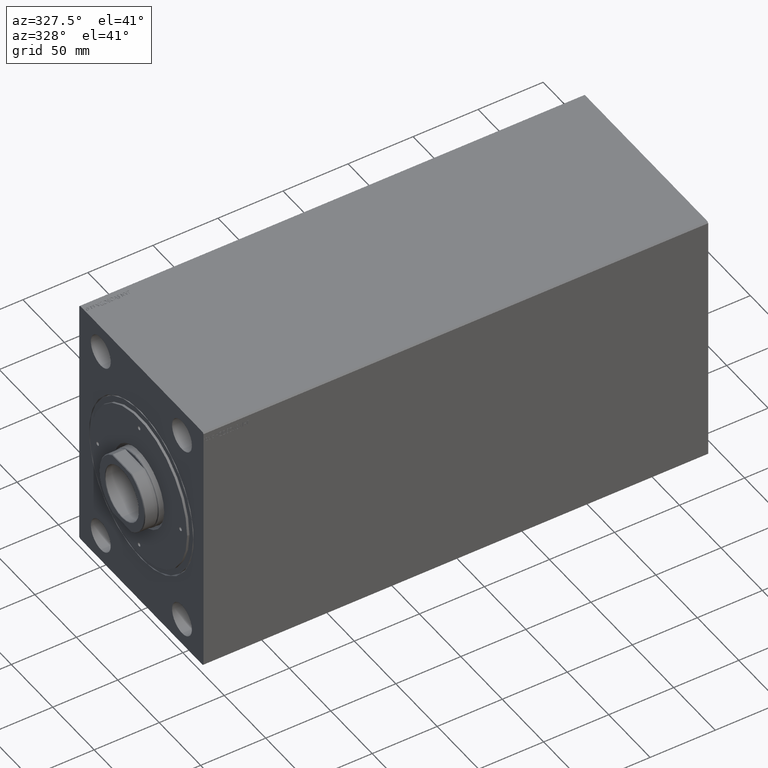
[diagram: clean part render]
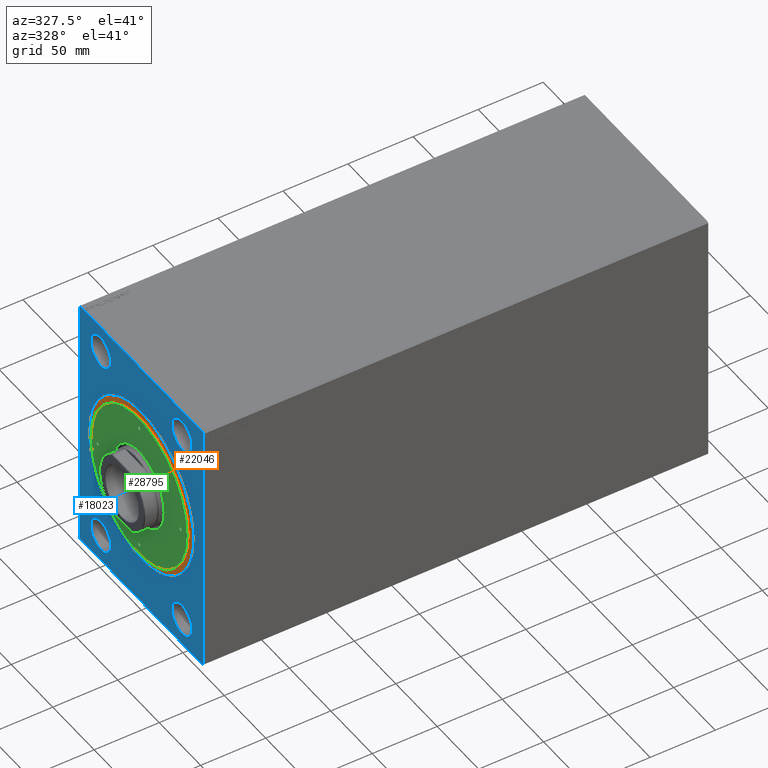
[diagram: same view with three faces highlighted in distinct colors, each labeled with its STEP entity id]
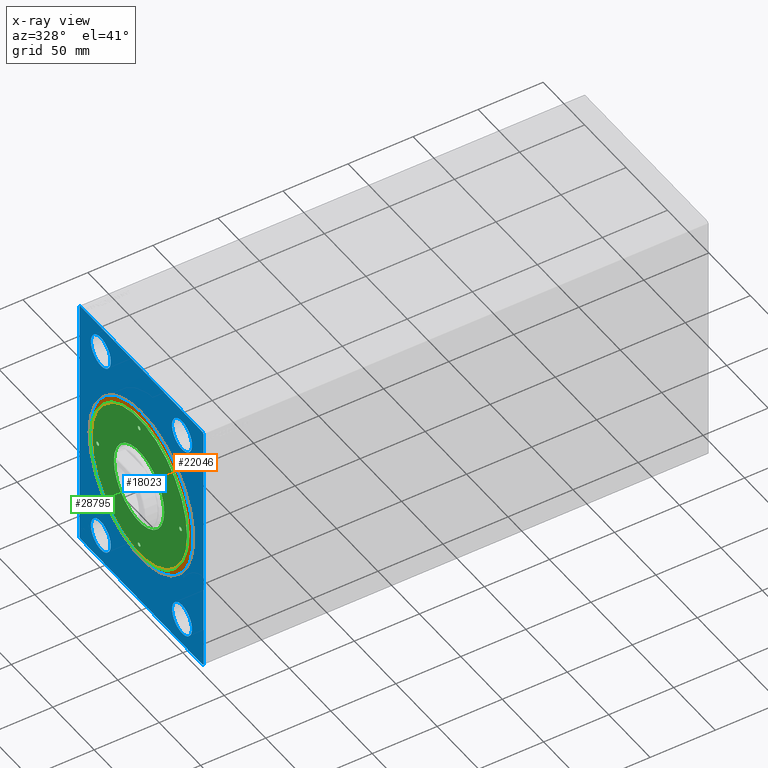
[diagram: x-ray of the same camera — body ghosted, the three highlighted faces saturated]
A machine part, auxiliary view with three faces highlighted in distinct colors.
The next image is the same camera in x-ray (body ghosted, the three faces saturated) — at least one of them is partly hidden behind the body in this view.
Their STEP definitions:

[orange] entity #22046 — the highlighted planar face has unit normal (-1, 0, 0).
#1119 = FACE_BOUND ( 'NONE', #40782, .T. ) ;
#1334 = EDGE_CURVE ( 'NONE', #1730, #22820, #11854, .T. ) ;
#1341 = DIRECTION ( 'NONE',  ( 0.000000000000000000, 0.000000000000000000, 1.000000000000000000 ) ) ;
#1730 = VERTEX_POINT ( 'NONE', #30438 ) ;
#4907 = CARTESIAN_POINT ( 'NONE',  ( 0.000000000000000000, 0.000000000000000000, 13.19999999999999929 ) ) ;
#7431 = DIRECTION ( 'NONE',  ( 1.000000000000000000, 0.000000000000000000, 0.000000000000000000 ) ) ;
#7586 = EDGE_CURVE ( 'NONE', #29214, #13556, #40800, .T. ) ;
#9111 = CIRCLE ( 'NONE', #14105, 58.00000000000000000 ) ;
#11854 = CIRCLE ( 'NONE', #36713, 58.00000000000000000 ) ;
#12027 = FACE_OUTER_BOUND ( 'NONE', #34918, .T. ) ;
#12065 = DIRECTION ( 'NONE',  ( 0.000000000000000000, 0.000000000000000000, 1.000000000000000000 ) ) ;
#13556 = VERTEX_POINT ( 'NONE', #37236 ) ;
#14105 = AXIS2_PLACEMENT_3D ( 'NONE', #34571, #31453, #7431 ) ;
#14574 = EDGE_CURVE ( 'NONE', #13556, #29214, #32248, .T. ) ;
#15168 = DIRECTION ( 'NONE',  ( 1.000000000000000000, 0.000000000000000000, 0.000000000000000000 ) ) ;
#15587 = PLANE ( 'NONE',  #41369 ) ;
#16047 = CARTESIAN_POINT ( 'NONE',  ( 0.000000000000000000, 0.000000000000000000, 13.19999999999999929 ) ) ;
#18596 = DIRECTION ( 'NONE',  ( 1.000000000000000000, 0.000000000000000000, 0.000000000000000000 ) ) ;
#19753 = ORIENTED_EDGE ( 'NONE', *, *, #1334, .F. ) ;
#22046 = ADVANCED_FACE ( 'NONE', ( #1119, #12027 ), #15587, .T. ) ;
#22820 = VERTEX_POINT ( 'NONE', #32061 ) ;
#23417 = CARTESIAN_POINT ( 'NONE',  ( 0.000000000000000000, 0.000000000000000000, 13.19999999999999929 ) ) ;
#27520 = ORIENTED_EDGE ( 'NONE', *, *, #7586, .T. ) ;
#29152 = DIRECTION ( 'NONE',  ( 1.000000000000000000, 0.000000000000000000, -0.000000000000000000 ) ) ;
#29214 = VERTEX_POINT ( 'NONE', #30441 ) ;
#30438 = CARTESIAN_POINT ( 'NONE',  ( -58.00000000000000000, 0.000000000000000000, 13.19999999999999929 ) ) ;
#30441 = CARTESIAN_POINT ( 'NONE',  ( -62.50000000000000000, 0.000000000000000000, 13.19999999999999929 ) ) ;
#31453 = DIRECTION ( 'NONE',  ( 0.000000000000000000, 0.000000000000000000, 1.000000000000000000 ) ) ;
#32061 = CARTESIAN_POINT ( 'NONE',  ( 58.00000000000000000, 7.102951435054648059E-15, 13.19999999999999929 ) ) ;
#32248 = CIRCLE ( 'NONE', #42176, 62.50000000000000000 ) ;
#34436 = AXIS2_PLACEMENT_3D ( 'NONE', #16047, #35413, #15168 ) ;
#34571 = CARTESIAN_POINT ( 'NONE',  ( 0.000000000000000000, 0.000000000000000000, 13.19999999999999929 ) ) ;
#34918 = EDGE_LOOP ( 'NONE', ( #27520, #41962 ) ) ;
#35213 = CARTESIAN_POINT ( 'NONE',  ( 0.000000000000000000, 0.000000000000000000, 13.19999999999999929 ) ) ;
#35413 = DIRECTION ( 'NONE',  ( 0.000000000000000000, 0.000000000000000000, 1.000000000000000000 ) ) ;
#35511 = DIRECTION ( 'NONE',  ( 0.000000000000000000, 0.000000000000000000, 1.000000000000000000 ) ) ;
#36713 = AXIS2_PLACEMENT_3D ( 'NONE', #35213, #12065, #42958 ) ;
#37236 = CARTESIAN_POINT ( 'NONE',  ( 62.50000000000000000, 7.654042494670957804E-15, 13.19999999999999929 ) ) ;
#40782 = EDGE_LOOP ( 'NONE', ( #19753, #42065 ) ) ;
#40800 = CIRCLE ( 'NONE', #34436, 62.50000000000000000 ) ;
#41369 = AXIS2_PLACEMENT_3D ( 'NONE', #4907, #1341, #29152 ) ;
#41962 = ORIENTED_EDGE ( 'NONE', *, *, #14574, .T. ) ;
#42065 = ORIENTED_EDGE ( 'NONE', *, *, #42076, .F. ) ;
#42076 = EDGE_CURVE ( 'NONE', #22820, #1730, #9111, .T. ) ;
#42176 = AXIS2_PLACEMENT_3D ( 'NONE', #23417, #35511, #18596 ) ;
#42958 = DIRECTION ( 'NONE',  ( 1.000000000000000000, 0.000000000000000000, 0.000000000000000000 ) ) ;

[blue] entity #18023 — the highlighted planar face has unit normal (1, 0, 0).
#243 = AXIS2_PLACEMENT_3D ( 'NONE', #22843, #23502, #5938 ) ;
#855 = CARTESIAN_POINT ( 'NONE',  ( 0.000000000000000000, 74.00000000000000000, 99.99999999999995737 ) ) ;
#1832 = ORIENTED_EDGE ( 'NONE', *, *, #12565, .F. ) ;
#2117 = VERTEX_POINT ( 'NONE', #42148 ) ;
#2231 = VERTEX_POINT ( 'NONE', #37389 ) ;
#2233 = EDGE_CURVE ( 'NONE', #29763, #38937, #10252, .T. ) ;
#2379 = EDGE_CURVE ( 'NONE', #37346, #31005, #43884, .T. ) ;
#3114 = LINE ( 'NONE', #9573, #24707 ) ;
#3236 = VECTOR ( 'NONE', #13814, 1000.000000000000000 ) ;
#4552 = CARTESIAN_POINT ( 'NONE',  ( 0.000000000000000000, 0.000000000000000000, 0.000000000000000000 ) ) ;
#4871 = CARTESIAN_POINT ( 'NONE',  ( 0.000000000000000000, 75.00000000000000000, 98.99999999999995737 ) ) ;
#5016 = EDGE_CURVE ( 'NONE', #2117, #22650, #11252, .T. ) ;
#5664 = DIRECTION ( 'NONE',  ( 0.000000000000000000, -7.008983741320432232E-17, 1.000000000000000000 ) ) ;
#5673 = ORIENTED_EDGE ( 'NONE', *, *, #35814, .F. ) ;
#5912 = AXIS2_PLACEMENT_3D ( 'NONE', #20364, #33726, #43722 ) ;
#5938 = DIRECTION ( 'NONE',  ( 0.000000000000000000, 0.000000000000000000, 1.000000000000000000 ) ) ;
#5948 = VECTOR ( 'NONE', #30777, 1000.000000000000114 ) ;
#6023 = DIRECTION ( 'NONE',  ( 0.000000000000000000, 0.7071067811865474617, -0.7071067811865474617 ) ) ;
#6924 = CARTESIAN_POINT ( 'NONE',  ( 0.000000000000000000, 74.00000000000001421, -100.0000000000000426 ) ) ;
#7140 = CARTESIAN_POINT ( 'NONE',  ( 9.797174393178825657E-16, 49.00000000000000000, 79.00000000000001421 ) ) ;
#7269 = ORIENTED_EDGE ( 'NONE', *, *, #24814, .F. ) ;
#8334 = EDGE_CURVE ( 'NONE', #15052, #30255, #21335, .T. ) ;
#8455 = FACE_BOUND ( 'NONE', #38650, .T. ) ;
#8755 = EDGE_LOOP ( 'NONE', ( #38732, #43094 ) ) ;
#8916 = CIRCLE ( 'NONE', #39457, 11.99999999999999645 ) ;
#9215 = CARTESIAN_POINT ( 'NONE',  ( 0.000000000000000000, 75.00000000000001421, -99.00000000000004263 ) ) ;
#9395 = EDGE_LOOP ( 'NONE', ( #17013, #7269, #32675, #34186, #13577, #5673, #31747, #22092 ) ) ;
#9573 = CARTESIAN_POINT ( 'NONE',  ( 0.000000000000000000, -74.99999999999997158, -99.00000000000005684 ) ) ;
#9598 = VECTOR ( 'NONE', #31579, 1000.000000000000114 ) ;
#9615 = CARTESIAN_POINT ( 'NONE',  ( 9.797174393178825657E-16, -49.00000000000000000, 67.00000000000001421 ) ) ;
#10252 = LINE ( 'NONE', #6924, #33203 ) ;
#10481 = EDGE_LOOP ( 'NONE', ( #23150, #25614 ) ) ;
#10963 = AXIS2_PLACEMENT_3D ( 'NONE', #24114, #27889, #27671 ) ;
#11252 = CIRCLE ( 'NONE', #16946, 63.19999999999986784 ) ;
#11364 = DIRECTION ( 'NONE',  ( 0.000000000000000000, 0.000000000000000000, -1.000000000000000000 ) ) ;
#11581 = DIRECTION ( 'NONE',  ( 1.000000000000000000, 0.000000000000000000, 0.000000000000000000 ) ) ;
#11717 = VERTEX_POINT ( 'NONE', #36720 ) ;
#11800 = CARTESIAN_POINT ( 'NONE',  ( 0.000000000000000000, 0.000000000000000000, 0.000000000000000000 ) ) ;
#12506 = CARTESIAN_POINT ( 'NONE',  ( 0.000000000000000000, -73.99999999999998579, -100.0000000000000426 ) ) ;
#12565 = EDGE_CURVE ( 'NONE', #15434, #25287, #21420, .T. ) ;
#12720 = CARTESIAN_POINT ( 'NONE',  ( 9.797174393178825657E-16, -49.00000000000000000, 91.00000000000001421 ) ) ;
#13237 = VERTEX_POINT ( 'NONE', #20820 ) ;
#13307 = CIRCLE ( 'NONE', #36042, 63.19999999999986784 ) ;
#13453 = DIRECTION ( 'NONE',  ( 0.000000000000000000, 0.000000000000000000, 1.000000000000000000 ) ) ;
#13577 = ORIENTED_EDGE ( 'NONE', *, *, #43922, .F. ) ;
#13814 = DIRECTION ( 'NONE',  ( 0.000000000000000000, 1.000000000000000000, 0.000000000000000000 ) ) ;
#14319 = AXIS2_PLACEMENT_3D ( 'NONE', #31206, #24312, #41425 ) ;
#14443 = DIRECTION ( 'NONE',  ( 0.000000000000000000, -1.000000000000000000, -9.376883653928687363E-17 ) ) ;
#14483 = FACE_OUTER_BOUND ( 'NONE', #9395, .T. ) ;
#15052 = VERTEX_POINT ( 'NONE', #4871 ) ;
#15165 = ORIENTED_EDGE ( 'NONE', *, *, #30090, .F. ) ;
#15191 = CIRCLE ( 'NONE', #243, 11.99999999999999645 ) ;
#15434 = VERTEX_POINT ( 'NONE', #22601 ) ;
#15798 = CARTESIAN_POINT ( 'NONE',  ( 0.000000000000000000, -75.00000000000000000, 98.99999999999994316 ) ) ;
#16460 = LINE ( 'NONE', #15798, #24583 ) ;
#16513 = DIRECTION ( 'NONE',  ( -1.000000000000000000, -0.000000000000000000, -0.000000000000000000 ) ) ;
#16946 = AXIS2_PLACEMENT_3D ( 'NONE', #4552, #18120, #25452 ) ;
#17013 = ORIENTED_EDGE ( 'NONE', *, *, #8334, .F. ) ;
#17220 = LINE ( 'NONE', #20986, #5948 ) ;
#17454 = DIRECTION ( 'NONE',  ( -1.000000000000000000, -0.000000000000000000, -0.000000000000000000 ) ) ;
#18023 = ADVANCED_FACE ( 'NONE', ( #18477, #8455, #38707, #21814, #25146, #14483 ), #42260, .F. ) ;
#18120 = DIRECTION ( 'NONE',  ( 1.000000000000000000, 0.000000000000000000, 0.000000000000000000 ) ) ;
#18467 = DIRECTION ( 'NONE',  ( 0.000000000000000000, 0.000000000000000000, 1.000000000000000000 ) ) ;
#18477 = FACE_BOUND ( 'NONE', #8755, .T. ) ;
#18687 = DIRECTION ( 'NONE',  ( 0.000000000000000000, 0.000000000000000000, 1.000000000000000000 ) ) ;
#19453 = VECTOR ( 'NONE', #5664, 1000.000000000000000 ) ;
#19474 = CIRCLE ( 'NONE', #10963, 11.99999999999999645 ) ;
#20364 = CARTESIAN_POINT ( 'NONE',  ( 9.797174393178825657E-16, -49.00000000000000000, 79.00000000000001421 ) ) ;
#20489 = DIRECTION ( 'NONE',  ( 0.000000000000000000, 0.7071067811865474617, 0.7071067811865474617 ) ) ;
#20699 = DIRECTION ( 'NONE',  ( -1.000000000000000000, -0.000000000000000000, -0.000000000000000000 ) ) ;
#20820 = CARTESIAN_POINT ( 'NONE',  ( 9.797174393178825657E-16, 49.00000000000000000, 67.00000000000001421 ) ) ;
#20986 = CARTESIAN_POINT ( 'NONE',  ( 0.000000000000000000, -74.00000000000000000, 99.99999999999994316 ) ) ;
#21048 = CARTESIAN_POINT ( 'NONE',  ( 0.000000000000000000, 7.739767770611254737E-15, -63.19999999999986784 ) ) ;
#21052 = AXIS2_PLACEMENT_3D ( 'NONE', #24124, #17454, #13453 ) ;
#21335 = LINE ( 'NONE', #28025, #9598 ) ;
#21420 = CIRCLE ( 'NONE', #14319, 11.99999999999999645 ) ;
#21589 = DIRECTION ( 'NONE',  ( 0.000000000000000000, 0.000000000000000000, -1.000000000000000000 ) ) ;
#21811 = CARTESIAN_POINT ( 'NONE',  ( 9.797174393178825657E-16, -49.00000000000000000, 79.00000000000001421 ) ) ;
#21814 = FACE_BOUND ( 'NONE', #10481, .T. ) ;
#22092 = ORIENTED_EDGE ( 'NONE', *, *, #43374, .F. ) ;
#22465 = DIRECTION ( 'NONE',  ( -1.000000000000000000, -0.000000000000000000, -0.000000000000000000 ) ) ;
#22601 = CARTESIAN_POINT ( 'NONE',  ( 9.797174393178825657E-16, -49.00000000000000000, -91.00000000000000000 ) ) ;
#22650 = VERTEX_POINT ( 'NONE', #21048 ) ;
#22843 = CARTESIAN_POINT ( 'NONE',  ( 9.797174393178825657E-16, 49.00000000000000000, -78.99999999999998579 ) ) ;
#23150 = ORIENTED_EDGE ( 'NONE', *, *, #2379, .F. ) ;
#23502 = DIRECTION ( 'NONE',  ( -1.000000000000000000, -0.000000000000000000, -0.000000000000000000 ) ) ;
#23649 = VERTEX_POINT ( 'NONE', #25003 ) ;
#24114 = CARTESIAN_POINT ( 'NONE',  ( 9.797174393178825657E-16, -49.00000000000000000, -79.00000000000000000 ) ) ;
#24124 = CARTESIAN_POINT ( 'NONE',  ( 9.797174393178825657E-16, 49.00000000000000000, 79.00000000000001421 ) ) ;
#24312 = DIRECTION ( 'NONE',  ( -1.000000000000000000, -0.000000000000000000, -0.000000000000000000 ) ) ;
#24583 = VECTOR ( 'NONE', #29361, 1000.000000000000000 ) ;
#24707 = VECTOR ( 'NONE', #6023, 1000.000000000000114 ) ;
#24814 = EDGE_CURVE ( 'NONE', #38937, #15052, #36797, .T. ) ;
#24966 = EDGE_CURVE ( 'NONE', #26280, #2231, #17220, .T. ) ;
#25003 = CARTESIAN_POINT ( 'NONE',  ( 9.797174393178825657E-16, 49.00000000000000000, -66.99999999999998579 ) ) ;
#25092 = CIRCLE ( 'NONE', #5912, 11.99999999999999645 ) ;
#25146 = FACE_BOUND ( 'NONE', #28067, .T. ) ;
#25287 = VERTEX_POINT ( 'NONE', #38001 ) ;
#25452 = DIRECTION ( 'NONE',  ( 0.000000000000000000, 0.000000000000000000, -1.000000000000000000 ) ) ;
#25614 = ORIENTED_EDGE ( 'NONE', *, *, #28631, .F. ) ;
#25810 = CARTESIAN_POINT ( 'NONE',  ( 0.000000000000000000, -74.00000000000000000, 99.99999999999994316 ) ) ;
#26045 = CIRCLE ( 'NONE', #21052, 11.99999999999999645 ) ;
#26280 = VERTEX_POINT ( 'NONE', #25810 ) ;
#26966 = CARTESIAN_POINT ( 'NONE',  ( 9.797174393178825657E-16, 49.00000000000000000, -78.99999999999998579 ) ) ;
#27610 = CARTESIAN_POINT ( 'NONE',  ( 0.000000000000000000, -73.99999999999998579, -100.0000000000000426 ) ) ;
#27671 = DIRECTION ( 'NONE',  ( 0.000000000000000000, 0.000000000000000000, 1.000000000000000000 ) ) ;
#27722 = AXIS2_PLACEMENT_3D ( 'NONE', #35383, #11581, #21589 ) ;
#27889 = DIRECTION ( 'NONE',  ( -1.000000000000000000, -0.000000000000000000, -0.000000000000000000 ) ) ;
#28025 = CARTESIAN_POINT ( 'NONE',  ( 0.000000000000000000, 75.00000000000000000, 98.99999999999995737 ) ) ;
#28067 = EDGE_LOOP ( 'NONE', ( #34893, #37446 ) ) ;
#28116 = AXIS2_PLACEMENT_3D ( 'NONE', #26966, #16513, #40510 ) ;
#28217 = CARTESIAN_POINT ( 'NONE',  ( 0.000000000000000000, 74.00000000000001421, -100.0000000000000426 ) ) ;
#28631 = EDGE_CURVE ( 'NONE', #31005, #37346, #25092, .T. ) ;
#28685 = VERTEX_POINT ( 'NONE', #38750 ) ;
#29361 = DIRECTION ( 'NONE',  ( 0.000000000000000000, 1.401796748264086446E-16, -1.000000000000000000 ) ) ;
#29763 = VERTEX_POINT ( 'NONE', #28217 ) ;
#29837 = EDGE_CURVE ( 'NONE', #23649, #28685, #15191, .T. ) ;
#30090 = EDGE_CURVE ( 'NONE', #25287, #15434, #19474, .T. ) ;
#30255 = VERTEX_POINT ( 'NONE', #35657 ) ;
#30777 = DIRECTION ( 'NONE',  ( 0.000000000000000000, -0.7071067811865474617, -0.7071067811865474617 ) ) ;
#31005 = VERTEX_POINT ( 'NONE', #9615 ) ;
#31206 = CARTESIAN_POINT ( 'NONE',  ( 9.797174393178825657E-16, -49.00000000000000000, -79.00000000000000000 ) ) ;
#31372 = LINE ( 'NONE', #27610, #3236 ) ;
#31579 = DIRECTION ( 'NONE',  ( 0.000000000000000000, -0.7071067811865474617, 0.7071067811865474617 ) ) ;
#31747 = ORIENTED_EDGE ( 'NONE', *, *, #24966, .F. ) ;
#32595 = VECTOR ( 'NONE', #14443, 1000.000000000000000 ) ;
#32675 = ORIENTED_EDGE ( 'NONE', *, *, #2233, .F. ) ;
#33203 = VECTOR ( 'NONE', #20489, 1000.000000000000114 ) ;
#33726 = DIRECTION ( 'NONE',  ( -1.000000000000000000, -0.000000000000000000, -0.000000000000000000 ) ) ;
#33952 = AXIS2_PLACEMENT_3D ( 'NONE', #21811, #22465, #18687 ) ;
#34186 = ORIENTED_EDGE ( 'NONE', *, *, #34769, .F. ) ;
#34539 = EDGE_CURVE ( 'NONE', #28685, #23649, #40154, .T. ) ;
#34618 = CARTESIAN_POINT ( 'NONE',  ( 0.000000000000000000, -74.99999999999997158, -99.00000000000005684 ) ) ;
#34769 = EDGE_CURVE ( 'NONE', #40092, #29763, #31372, .T. ) ;
#34816 = EDGE_CURVE ( 'NONE', #13237, #11717, #8916, .T. ) ;
#34893 = ORIENTED_EDGE ( 'NONE', *, *, #5016, .T. ) ;
#35383 = CARTESIAN_POINT ( 'NONE',  ( 0.000000000000000000, 0.000000000000000000, 0.000000000000000000 ) ) ;
#35495 = ORIENTED_EDGE ( 'NONE', *, *, #29837, .F. ) ;
#35657 = CARTESIAN_POINT ( 'NONE',  ( 0.000000000000000000, 74.00000000000000000, 99.99999999999995737 ) ) ;
#35814 = EDGE_CURVE ( 'NONE', #2231, #40865, #16460, .T. ) ;
#36042 = AXIS2_PLACEMENT_3D ( 'NONE', #11800, #42261, #11364 ) ;
#36720 = CARTESIAN_POINT ( 'NONE',  ( 9.797174393178825657E-16, 49.00000000000000000, 91.00000000000001421 ) ) ;
#36797 = LINE ( 'NONE', #9215, #19453 ) ;
#37253 = EDGE_CURVE ( 'NONE', #11717, #13237, #26045, .T. ) ;
#37346 = VERTEX_POINT ( 'NONE', #12720 ) ;
#37389 = CARTESIAN_POINT ( 'NONE',  ( 0.000000000000000000, -75.00000000000000000, 98.99999999999994316 ) ) ;
#37446 = ORIENTED_EDGE ( 'NONE', *, *, #39253, .T. ) ;
#38001 = CARTESIAN_POINT ( 'NONE',  ( 9.797174393178825657E-16, -49.00000000000000000, -67.00000000000000000 ) ) ;
#38650 = EDGE_LOOP ( 'NONE', ( #15165, #1832 ) ) ;
#38707 = FACE_BOUND ( 'NONE', #42552, .T. ) ;
#38732 = ORIENTED_EDGE ( 'NONE', *, *, #37253, .F. ) ;
#38750 = CARTESIAN_POINT ( 'NONE',  ( 9.797174393178825657E-16, 49.00000000000000000, -90.99999999999998579 ) ) ;
#38937 = VERTEX_POINT ( 'NONE', #43728 ) ;
#39253 = EDGE_CURVE ( 'NONE', #22650, #2117, #13307, .T. ) ;
#39457 = AXIS2_PLACEMENT_3D ( 'NONE', #7140, #20699, #18467 ) ;
#40092 = VERTEX_POINT ( 'NONE', #12506 ) ;
#40154 = CIRCLE ( 'NONE', #28116, 11.99999999999999645 ) ;
#40510 = DIRECTION ( 'NONE',  ( 0.000000000000000000, 0.000000000000000000, 1.000000000000000000 ) ) ;
#40682 = LINE ( 'NONE', #855, #32595 ) ;
#40865 = VERTEX_POINT ( 'NONE', #34618 ) ;
#41425 = DIRECTION ( 'NONE',  ( 0.000000000000000000, 0.000000000000000000, 1.000000000000000000 ) ) ;
#41746 = ORIENTED_EDGE ( 'NONE', *, *, #34539, .F. ) ;
#42148 = CARTESIAN_POINT ( 'NONE',  ( 0.000000000000000000, 0.000000000000000000, 63.19999999999986784 ) ) ;
#42260 = PLANE ( 'NONE',  #27722 ) ;
#42261 = DIRECTION ( 'NONE',  ( 1.000000000000000000, 0.000000000000000000, 0.000000000000000000 ) ) ;
#42552 = EDGE_LOOP ( 'NONE', ( #35495, #41746 ) ) ;
#43094 = ORIENTED_EDGE ( 'NONE', *, *, #34816, .F. ) ;
#43374 = EDGE_CURVE ( 'NONE', #30255, #26280, #40682, .T. ) ;
#43722 = DIRECTION ( 'NONE',  ( 0.000000000000000000, 0.000000000000000000, 1.000000000000000000 ) ) ;
#43728 = CARTESIAN_POINT ( 'NONE',  ( 0.000000000000000000, 75.00000000000001421, -99.00000000000004263 ) ) ;
#43884 = CIRCLE ( 'NONE', #33952, 11.99999999999999645 ) ;
#43922 = EDGE_CURVE ( 'NONE', #40865, #40092, #3114, .T. ) ;

[green] entity #28795 — the highlighted planar face has unit normal (-1, 0, 0).
#584 = ORIENTED_EDGE ( 'NONE', *, *, #26181, .F. ) ;
#616 = DIRECTION ( 'NONE',  ( 1.000000000000000000, 0.000000000000000000, 0.000000000000000000 ) ) ;
#1140 = DIRECTION ( 'NONE',  ( 0.000000000000000000, 0.000000000000000000, 1.000000000000000000 ) ) ;
#2335 = DIRECTION ( 'NONE',  ( -0.000000000000000000, -0.000000000000000000, -1.000000000000000000 ) ) ;
#2878 = ORIENTED_EDGE ( 'NONE', *, *, #17781, .F. ) ;
#2904 = CARTESIAN_POINT ( 'NONE',  ( -1.499999999999996891, 50.00000000000000000, 15.00000000000000000 ) ) ;
#3263 = CARTESIAN_POINT ( 'NONE',  ( 30.29999999999997229, 0.000000000000000000, 15.00000000000000000 ) ) ;
#3477 = DIRECTION ( 'NONE',  ( -0.000000000000000000, -0.000000000000000000, 1.000000000000000000 ) ) ;
#3590 = VERTEX_POINT ( 'NONE', #15291 ) ;
#3887 = VERTEX_POINT ( 'NONE', #2904 ) ;
#4191 = CARTESIAN_POINT ( 'NONE',  ( 48.50000000000000711, 1.836970198721022785E-16, 15.00000000000000000 ) ) ;
#4829 = CIRCLE ( 'NONE', #13338, 1.499999999999994449 ) ;
#5718 = CARTESIAN_POINT ( 'NONE',  ( 0.000000000000000000, -50.00000000000000000, 15.00000000000000000 ) ) ;
#5944 = CARTESIAN_POINT ( 'NONE',  ( 50.00000000000000000, 0.000000000000000000, 15.00000000000000000 ) ) ;
#6412 = CIRCLE ( 'NONE', #29154, 1.499999999999994449 ) ;
#6572 = DIRECTION ( 'NONE',  ( 1.000000000000000000, 0.000000000000000000, 0.000000000000000000 ) ) ;
#6867 = CARTESIAN_POINT ( 'NONE',  ( -50.00000000000000000, 0.000000000000000000, 15.00000000000000000 ) ) ;
#7274 = ORIENTED_EDGE ( 'NONE', *, *, #33997, .F. ) ;
#8101 = CIRCLE ( 'NONE', #28689, 1.499999999999994449 ) ;
#9056 = DIRECTION ( 'NONE',  ( -0.000000000000000000, -0.000000000000000000, 1.000000000000000000 ) ) ;
#9370 = FACE_BOUND ( 'NONE', #21055, .T. ) ;
#10509 = CIRCLE ( 'NONE', #16209, 1.499999999999996891 ) ;
#10672 = EDGE_CURVE ( 'NONE', #23037, #21175, #13581, .T. ) ;
#11039 = EDGE_CURVE ( 'NONE', #22486, #18010, #27087, .T. ) ;
#11419 = DIRECTION ( 'NONE',  ( -0.000000000000000000, -0.000000000000000000, 1.000000000000000000 ) ) ;
#11599 = CIRCLE ( 'NONE', #42137, 30.29999999999996874 ) ;
#11830 = ORIENTED_EDGE ( 'NONE', *, *, #40777, .F. ) ;
#12328 = AXIS2_PLACEMENT_3D ( 'NONE', #13593, #43184, #29848 ) ;
#12483 = AXIS2_PLACEMENT_3D ( 'NONE', #6867, #16676, #16241 ) ;
#12854 = VERTEX_POINT ( 'NONE', #14468 ) ;
#12941 = PLANE ( 'NONE',  #12328 ) ;
#13338 = AXIS2_PLACEMENT_3D ( 'NONE', #5944, #9056, #29304 ) ;
#13397 = CARTESIAN_POINT ( 'NONE',  ( -50.00000000000000000, 0.000000000000000000, 15.00000000000000000 ) ) ;
#13448 = VERTEX_POINT ( 'NONE', #19685 ) ;
#13581 = CIRCLE ( 'NONE', #30629, 58.00000000000000000 ) ;
#13593 = CARTESIAN_POINT ( 'NONE',  ( 0.000000000000000000, 0.000000000000000000, 15.00000000000000000 ) ) ;
#13609 = VERTEX_POINT ( 'NONE', #41666 ) ;
#13915 = CIRCLE ( 'NONE', #12483, 1.499999999999994449 ) ;
#14468 = CARTESIAN_POINT ( 'NONE',  ( 1.499999999999996891, 50.00000000000000000, 15.00000000000000000 ) ) ;
#14727 = DIRECTION ( 'NONE',  ( 1.000000000000000000, 0.000000000000000000, 0.000000000000000000 ) ) ;
#14762 = DIRECTION ( 'NONE',  ( 1.000000000000000000, 0.000000000000000000, 0.000000000000000000 ) ) ;
#15291 = CARTESIAN_POINT ( 'NONE',  ( -48.50000000000000711, 0.000000000000000000, 15.00000000000000000 ) ) ;
#16209 = AXIS2_PLACEMENT_3D ( 'NONE', #33962, #3477, #36633 ) ;
#16241 = DIRECTION ( 'NONE',  ( 1.000000000000000000, 0.000000000000000000, 0.000000000000000000 ) ) ;
#16676 = DIRECTION ( 'NONE',  ( -0.000000000000000000, -0.000000000000000000, 1.000000000000000000 ) ) ;
#17165 = CARTESIAN_POINT ( 'NONE',  ( -30.29999999999997229, 3.710679801416476882E-15, 15.00000000000000000 ) ) ;
#17662 = AXIS2_PLACEMENT_3D ( 'NONE', #38826, #35506, #21940 ) ;
#17781 = EDGE_CURVE ( 'NONE', #40520, #13609, #6412, .T. ) ;
#18010 = VERTEX_POINT ( 'NONE', #17165 ) ;
#18686 = EDGE_CURVE ( 'NONE', #21175, #23037, #30035, .T. ) ;
#18776 = CIRCLE ( 'NONE', #33700, 1.499999999999996891 ) ;
#19685 = CARTESIAN_POINT ( 'NONE',  ( -51.50000000000000000, 1.836970198721022785E-16, 15.00000000000000000 ) ) ;
#19730 = DIRECTION ( 'NONE',  ( 1.000000000000000000, 0.000000000000000000, 0.000000000000000000 ) ) ;
#20452 = ORIENTED_EDGE ( 'NONE', *, *, #11039, .T. ) ;
#21055 = EDGE_LOOP ( 'NONE', ( #31082, #2878 ) ) ;
#21175 = VERTEX_POINT ( 'NONE', #31376 ) ;
#21940 = DIRECTION ( 'NONE',  ( 1.000000000000000000, 0.000000000000000000, 0.000000000000000000 ) ) ;
#22486 = VERTEX_POINT ( 'NONE', #3263 ) ;
#22627 = DIRECTION ( 'NONE',  ( -0.000000000000000000, -0.000000000000000000, 1.000000000000000000 ) ) ;
#22822 = CARTESIAN_POINT ( 'NONE',  ( 0.000000000000000000, 0.000000000000000000, 15.00000000000000000 ) ) ;
#23037 = VERTEX_POINT ( 'NONE', #34686 ) ;
#23853 = CIRCLE ( 'NONE', #38042, 1.499999999999996891 ) ;
#24325 = CARTESIAN_POINT ( 'NONE',  ( 0.000000000000000000, 50.00000000000000000, 15.00000000000000000 ) ) ;
#24380 = ORIENTED_EDGE ( 'NONE', *, *, #34298, .F. ) ;
#26162 = DIRECTION ( 'NONE',  ( 0.000000000000000000, 0.000000000000000000, 1.000000000000000000 ) ) ;
#26181 = EDGE_CURVE ( 'NONE', #3590, #13448, #8101, .T. ) ;
#26215 = VERTEX_POINT ( 'NONE', #38717 ) ;
#26482 = AXIS2_PLACEMENT_3D ( 'NONE', #38842, #26162, #39712 ) ;
#26733 = FACE_BOUND ( 'NONE', #29863, .T. ) ;
#27087 = CIRCLE ( 'NONE', #34897, 30.29999999999996874 ) ;
#28175 = EDGE_CURVE ( 'NONE', #18010, #22486, #11599, .T. ) ;
#28689 = AXIS2_PLACEMENT_3D ( 'NONE', #13397, #37183, #37401 ) ;
#28795 = ADVANCED_FACE ( 'NONE', ( #40281, #26733, #9370, #36952, #43619, #39841 ), #12941, .T. ) ;
#28957 = ORIENTED_EDGE ( 'NONE', *, *, #41859, .F. ) ;
#29154 = AXIS2_PLACEMENT_3D ( 'NONE', #34609, #37943, #35053 ) ;
#29304 = DIRECTION ( 'NONE',  ( 1.000000000000000000, 0.000000000000000000, 0.000000000000000000 ) ) ;
#29721 = ORIENTED_EDGE ( 'NONE', *, *, #10672, .T. ) ;
#29848 = DIRECTION ( 'NONE',  ( 1.000000000000000000, 0.000000000000000000, -0.000000000000000000 ) ) ;
#29863 = EDGE_LOOP ( 'NONE', ( #30839, #28957 ) ) ;
#30035 = CIRCLE ( 'NONE', #26482, 58.00000000000000000 ) ;
#30190 = EDGE_CURVE ( 'NONE', #12854, #3887, #18776, .T. ) ;
#30419 = CIRCLE ( 'NONE', #17662, 1.499999999999996891 ) ;
#30629 = AXIS2_PLACEMENT_3D ( 'NONE', #39325, #1140, #14727 ) ;
#30839 = ORIENTED_EDGE ( 'NONE', *, *, #30190, .F. ) ;
#31082 = ORIENTED_EDGE ( 'NONE', *, *, #40609, .F. ) ;
#31302 = EDGE_LOOP ( 'NONE', ( #584, #7274 ) ) ;
#31376 = CARTESIAN_POINT ( 'NONE',  ( 58.00000000000000000, 7.102951435054648059E-15, 15.00000000000000000 ) ) ;
#31787 = ORIENTED_EDGE ( 'NONE', *, *, #18686, .T. ) ;
#33700 = AXIS2_PLACEMENT_3D ( 'NONE', #24325, #11419, #14762 ) ;
#33962 = CARTESIAN_POINT ( 'NONE',  ( 0.000000000000000000, -50.00000000000000000, 15.00000000000000000 ) ) ;
#33997 = EDGE_CURVE ( 'NONE', #13448, #3590, #13915, .T. ) ;
#34298 = EDGE_CURVE ( 'NONE', #42001, #26215, #23853, .T. ) ;
#34609 = CARTESIAN_POINT ( 'NONE',  ( 50.00000000000000000, 0.000000000000000000, 15.00000000000000000 ) ) ;
#34660 = CARTESIAN_POINT ( 'NONE',  ( 0.000000000000000000, 0.000000000000000000, 15.00000000000000000 ) ) ;
#34686 = CARTESIAN_POINT ( 'NONE',  ( -58.00000000000000000, 0.000000000000000000, 15.00000000000000000 ) ) ;
#34897 = AXIS2_PLACEMENT_3D ( 'NONE', #22822, #2335, #6572 ) ;
#35053 = DIRECTION ( 'NONE',  ( 1.000000000000000000, 0.000000000000000000, 0.000000000000000000 ) ) ;
#35506 = DIRECTION ( 'NONE',  ( -0.000000000000000000, -0.000000000000000000, 1.000000000000000000 ) ) ;
#35625 = EDGE_LOOP ( 'NONE', ( #11830, #24380 ) ) ;
#36633 = DIRECTION ( 'NONE',  ( 1.000000000000000000, 0.000000000000000000, 0.000000000000000000 ) ) ;
#36952 = FACE_BOUND ( 'NONE', #35625, .T. ) ;
#37020 = EDGE_LOOP ( 'NONE', ( #29721, #31787 ) ) ;
#37183 = DIRECTION ( 'NONE',  ( -0.000000000000000000, -0.000000000000000000, 1.000000000000000000 ) ) ;
#37401 = DIRECTION ( 'NONE',  ( 1.000000000000000000, 0.000000000000000000, 0.000000000000000000 ) ) ;
#37943 = DIRECTION ( 'NONE',  ( -0.000000000000000000, -0.000000000000000000, 1.000000000000000000 ) ) ;
#38042 = AXIS2_PLACEMENT_3D ( 'NONE', #5718, #22627, #19730 ) ;
#38717 = CARTESIAN_POINT ( 'NONE',  ( 1.499999999999996891, -50.00000000000000000, 15.00000000000000000 ) ) ;
#38826 = CARTESIAN_POINT ( 'NONE',  ( 0.000000000000000000, 50.00000000000000000, 15.00000000000000000 ) ) ;
#38842 = CARTESIAN_POINT ( 'NONE',  ( 0.000000000000000000, 0.000000000000000000, 15.00000000000000000 ) ) ;
#39325 = CARTESIAN_POINT ( 'NONE',  ( 0.000000000000000000, 0.000000000000000000, 15.00000000000000000 ) ) ;
#39712 = DIRECTION ( 'NONE',  ( 1.000000000000000000, 0.000000000000000000, 0.000000000000000000 ) ) ;
#39817 = EDGE_LOOP ( 'NONE', ( #20452, #39903 ) ) ;
#39841 = FACE_OUTER_BOUND ( 'NONE', #37020, .T. ) ;
#39903 = ORIENTED_EDGE ( 'NONE', *, *, #28175, .T. ) ;
#40281 = FACE_BOUND ( 'NONE', #31302, .T. ) ;
#40520 = VERTEX_POINT ( 'NONE', #4191 ) ;
#40609 = EDGE_CURVE ( 'NONE', #13609, #40520, #4829, .T. ) ;
#40777 = EDGE_CURVE ( 'NONE', #26215, #42001, #10509, .T. ) ;
#40870 = DIRECTION ( 'NONE',  ( -0.000000000000000000, -0.000000000000000000, -1.000000000000000000 ) ) ;
#41666 = CARTESIAN_POINT ( 'NONE',  ( 51.50000000000000000, 0.000000000000000000, 15.00000000000000000 ) ) ;
#41859 = EDGE_CURVE ( 'NONE', #3887, #12854, #30419, .T. ) ;
#42001 = VERTEX_POINT ( 'NONE', #43695 ) ;
#42137 = AXIS2_PLACEMENT_3D ( 'NONE', #34660, #40870, #616 ) ;
#43184 = DIRECTION ( 'NONE',  ( 0.000000000000000000, 0.000000000000000000, 1.000000000000000000 ) ) ;
#43619 = FACE_BOUND ( 'NONE', #39817, .T. ) ;
#43695 = CARTESIAN_POINT ( 'NONE',  ( -1.499999999999996891, -50.00000000000000000, 15.00000000000000000 ) ) ;